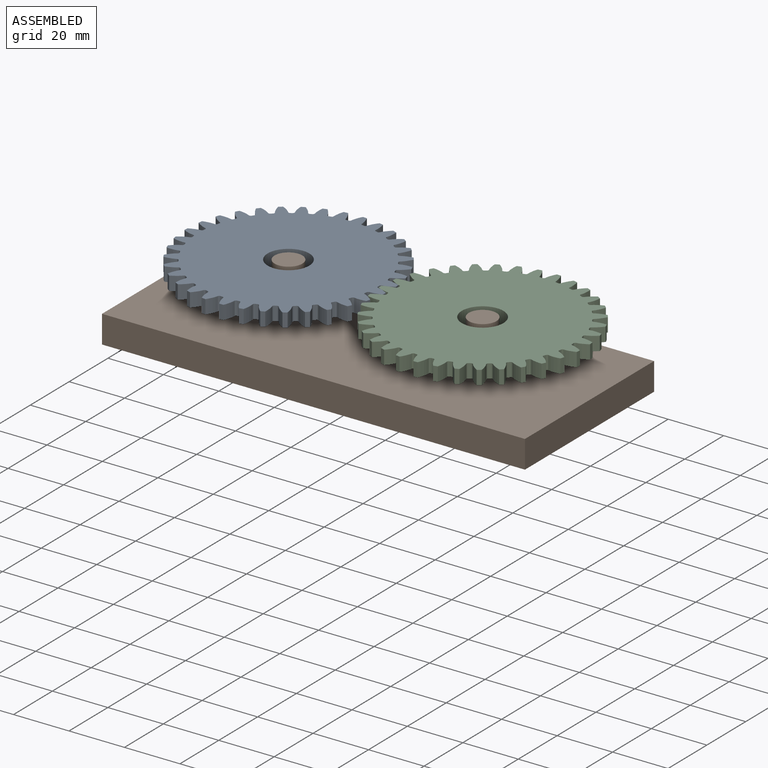
[diagram: assembled view]
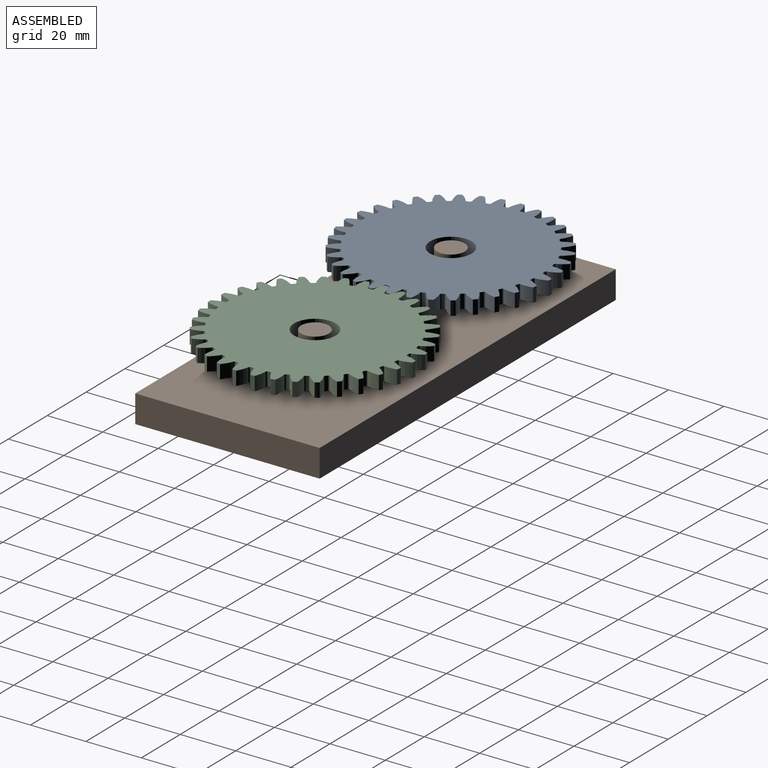
[diagram: assembled view, second angle]
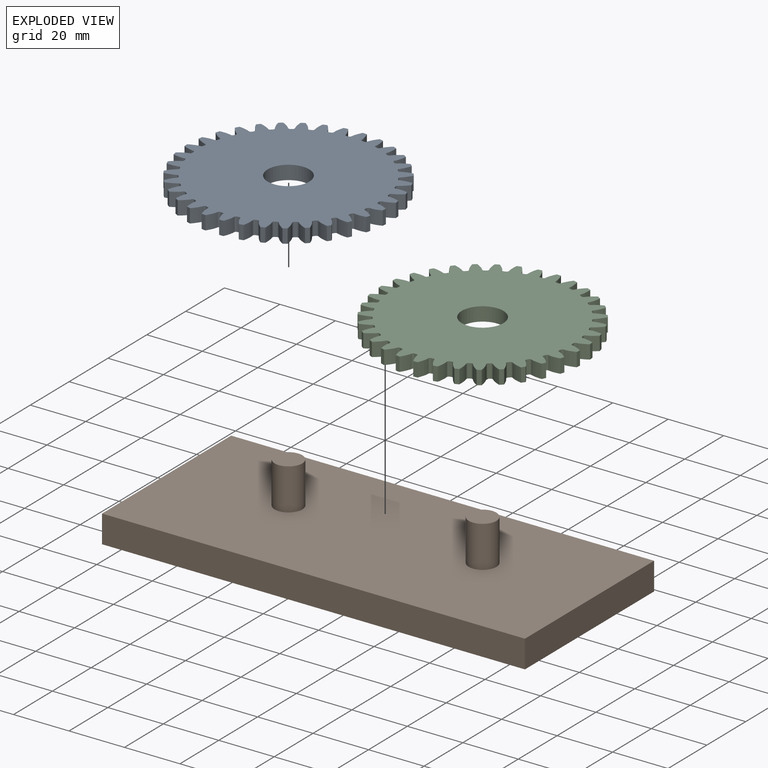
[diagram: exploded view]
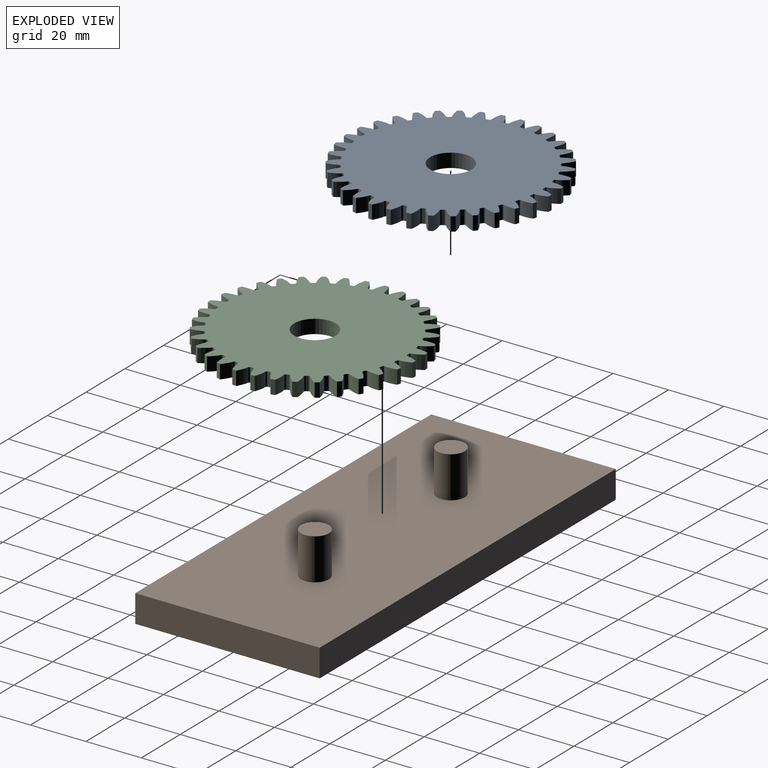
[diagram: exploded view, second angle]
ASSEMBLY  parts=3 mates=2
PART A: 213 faces, bbox 73.9x5x74 mm
  f0: extruded ~5x3.86mm, area 20.9mm2, adj f140,f141,f142,f143
  f1: cylinder r=32.5mm len=5mm, axis (0,1,0), area 3.5mm2, adj f141,f142,f143,f144
  f2: extruded ~5x3.86mm, area 20.9mm2, adj f3,f141,f142,f144
  f3: cylinder r=37mm len=5mm, axis (0,1,0), area 7.5mm2, adj f2,f4,f141,f142
  f4: extruded ~5x4.07mm, area 20.9mm2, adj f3,f141,f142,f145
  f5: cylinder r=32.5mm len=5mm, axis (0,1,0), area 3.5mm2, adj f141,f142,f145,f146
  f6: extruded ~5x3.51mm, area 20.9mm2, adj f7,f141,f142,f146
  f7: cylinder r=37mm len=5mm, axis (0,1,0), area 7.5mm2, adj f6,f8,f141,f142
  f8: extruded ~5x4.16mm, area 20.9mm2, adj f7,f141,f142,f147
  f9: cylinder r=32.5mm len=5mm, axis (0,1,0), area 3.5mm2, adj f141,f142,f147,f148
  f10: extruded ~5x3.06mm, area 20.9mm2, adj f11,f141,f142,f148
  f11: cylinder r=37mm len=5mm, axis (0,1,0), area 7.5mm2, adj f10,f12,f141,f142
  f12: extruded ~5x4.11mm, area 20.9mm2, adj f11,f141,f142,f149
  f13: cylinder r=32.5mm len=5mm, axis (0,1,0), area 3.5mm2, adj f141,f142,f149,f150
  f14: extruded ~5x3.32mm, area 20.9mm2, adj f15,f141,f142,f150
  f15: cylinder r=37mm len=5mm, axis (0,1,0), area 7.5mm2, adj f14,f16,f141,f142
  f16: extruded ~5x3.93mm, area 20.9mm2, adj f15,f141,f142,f151
  f17: cylinder r=32.5mm len=5mm, axis (0,1,0), area 3.5mm2, adj f141,f142,f151,f152
  f18: extruded ~5x3.72mm, area 20.9mm2, adj f19,f141,f142,f152
  f19: cylinder r=37mm len=5mm, axis (0,1,0), area 7.5mm2, adj f18,f20,f141,f142
  f20: extruded ~5x3.63mm, area 20.9mm2, adj f19,f141,f142,f153
  f21: cylinder r=32.5mm len=5mm, axis (0,1,0), area 3.5mm2, adj f141,f142,f153,f154
  f22: extruded ~5x3.99mm, area 20.9mm2, adj f23,f141,f142,f154
  f23: cylinder r=37mm len=5mm, axis (0,1,0), area 7.5mm2, adj f22,f24,f141,f142
  f24: extruded ~5x3.21mm, area 20.9mm2, adj f23,f141,f142,f155
  f25: cylinder r=32.5mm len=5mm, axis (0,1,0), area 3.5mm2, adj f141,f142,f155,f156
  f26: extruded ~5x4.14mm, area 20.9mm2, adj f27,f141,f142,f156
  f27: cylinder r=37mm len=5mm, axis (0,1,0), area 7.5mm2, adj f26,f28,f141,f142
  f28: extruded ~5x3.18mm, area 20.9mm2, adj f27,f141,f142,f157
  f29: cylinder r=32.5mm len=5mm, axis (0,1,0), area 3.5mm2, adj f141,f142,f157,f158
  f30: extruded ~5x4.15mm, area 20.9mm2, adj f31,f141,f142,f158
  f31: cylinder r=37mm len=5mm, axis (0,1,0), area 7.5mm2, adj f30,f32,f141,f142
  f32: extruded ~5x3.61mm, area 20.9mm2, adj f31,f141,f142,f159
  f33: cylinder r=32.5mm len=5mm, axis (0,1,0), area 3.5mm2, adj f141,f142,f159,f160
  f34: extruded ~5x4.03mm, area 20.9mm2, adj f35,f141,f142,f160
  f35: cylinder r=37mm len=5mm, axis (0,1,0), area 7.5mm2, adj f34,f36,f141,f142
  f36: extruded ~5x3.92mm, area 20.9mm2, adj f35,f141,f142,f161
  f37: cylinder r=32.5mm len=5mm, axis (0,1,0), area 3.5mm2, adj f141,f142,f161,f162
  f38: extruded ~5x3.78mm, area 20.9mm2, adj f39,f141,f142,f162
  f39: cylinder r=37mm len=5mm, axis (0,1,0), area 7.5mm2, adj f38,f40,f141,f142
  f40: extruded ~5x4.11mm, area 20.9mm2, adj f39,f141,f142,f163
  f41: cylinder r=32.5mm len=5mm, axis (0,1,0), area 3.5mm2, adj f141,f142,f163,f164
  f42: extruded ~5x3.41mm, area 20.9mm2, adj f43,f141,f142,f164
  f43: cylinder r=37mm len=5mm, axis (0,1,0), area 7.5mm2, adj f42,f44,f141,f142
  f44: extruded ~5x4.16mm, area 20.9mm2, adj f43,f141,f142,f165
  f45: cylinder r=32.5mm len=5mm, axis (0,1,0), area 3.5mm2, adj f141,f142,f165,f166
  f46: extruded ~5x2.96mm, area 20.9mm2, adj f47,f141,f142,f166
  f47: cylinder r=37mm len=5mm, axis (0,1,0), area 7.5mm2, adj f46,f48,f141,f142
  f48: extruded ~5x4.08mm, area 20.9mm2, adj f47,f141,f142,f167
  f49: cylinder r=32.5mm len=5mm, axis (0,1,0), area 3.5mm2, adj f141,f142,f167,f168
  f50: extruded ~5x3.43mm, area 20.9mm2, adj f51,f141,f142,f168
  f51: cylinder r=37mm len=5mm, axis (0,1,0), area 7.5mm2, adj f50,f52,f141,f142
  f52: extruded ~5x3.87mm, area 20.9mm2, adj f51,f141,f142,f169
  f53: cylinder r=32.5mm len=5mm, axis (0,1,0), area 3.5mm2, adj f141,f142,f169,f170
  f54: extruded ~5x3.8mm, area 20.9mm2, adj f55,f141,f142,f170
  f55: cylinder r=37mm len=5mm, axis (0,1,0), area 7.5mm2, adj f54,f56,f141,f142
  f56: extruded ~5x3.53mm, area 20.9mm2, adj f55,f141,f142,f171
  f57: cylinder r=32.5mm len=5mm, axis (0,1,0), area 3.5mm2, adj f141,f142,f171,f172
  f58: extruded ~5x4.04mm, area 20.9mm2, adj f59,f141,f142,f172
  f59: cylinder r=37mm len=5mm, axis (0,1,0), area 7.5mm2, adj f58,f60,f141,f142
  f60: extruded ~5x3.08mm, area 20.9mm2, adj f59,f141,f142,f173
  f61: cylinder r=32.5mm len=5mm, axis (0,1,0), area 3.5mm2, adj f141,f142,f173,f174
  f62: extruded ~5x4.15mm, area 20.9mm2, adj f63,f141,f142,f174
  f63: cylinder r=37mm len=5mm, axis (0,1,0), area 7.5mm2, adj f62,f64,f141,f142
  f64: extruded ~5x3.3mm, area 20.9mm2, adj f63,f141,f142,f175
  f65: cylinder r=32.5mm len=5mm, axis (0,1,0), area 3.5mm2, adj f141,f142,f175,f176
  f66: extruded ~5x4.13mm, area 20.9mm2, adj f67,f141,f142,f176
  f67: cylinder r=37mm len=5mm, axis (0,1,0), area 7.5mm2, adj f66,f68,f141,f142
  f68: extruded ~5x3.7mm, area 20.9mm2, adj f67,f141,f142,f177
  f69: cylinder r=32.5mm len=5mm, axis (0,1,0), area 3.5mm2, adj f141,f142,f177,f178
  f70: extruded ~5x3.98mm, area 20.9mm2, adj f71,f141,f142,f178
  f71: cylinder r=37mm len=5mm, axis (0,1,0), area 7.5mm2, adj f70,f72,f141,f142
  f72: extruded ~5x3.98mm, area 20.9mm2, adj f71,f141,f142,f179
  f73: cylinder r=32.5mm len=5mm, axis (0,1,0), area 3.5mm2, adj f141,f142,f179,f180
  f74: extruded ~5x3.7mm, area 20.9mm2, adj f75,f141,f142,f180
  f75: cylinder r=37mm len=5mm, axis (0,1,0), area 7.5mm2, adj f74,f76,f141,f142
  f76: extruded ~5x4.13mm, area 20.9mm2, adj f75,f141,f142,f181
  f77: cylinder r=32.5mm len=5mm, axis (0,1,0), area 3.5mm2, adj f141,f142,f181,f182
  f78: extruded ~5x3.3mm, area 20.9mm2, adj f79,f141,f142,f182
  f79: cylinder r=37mm len=5mm, axis (0,1,0), area 7.5mm2, adj f78,f80,f141,f142
  f80: extruded ~5x4.15mm, area 20.9mm2, adj f79,f141,f142,f183
  f81: cylinder r=32.5mm len=5mm, axis (0,1,0), area 3.5mm2, adj f141,f142,f183,f184
  f82: extruded ~5x3.08mm, area 20.9mm2, adj f83,f141,f142,f184
  f83: cylinder r=37mm len=5mm, axis (0,1,0), area 7.5mm2, adj f82,f84,f141,f142
  f84: extruded ~5x4.04mm, area 20.9mm2, adj f83,f141,f142,f185
  f85: cylinder r=32.5mm len=5mm, axis (0,1,0), area 3.5mm2, adj f141,f142,f185,f186
  f86: extruded ~5x3.53mm, area 20.9mm2, adj f87,f141,f142,f186
  f87: cylinder r=37mm len=5mm, axis (0,1,0), area 7.5mm2, adj f86,f88,f141,f142
  f88: extruded ~5x3.8mm, area 20.9mm2, adj f87,f141,f142,f187
  f89: cylinder r=32.5mm len=5mm, axis (0,1,0), area 3.5mm2, adj f141,f142,f187,f188
  f90: extruded ~5x3.87mm, area 20.9mm2, adj f91,f141,f142,f188
  f91: cylinder r=37mm len=5mm, axis (0,1,0), area 7.5mm2, adj f90,f92,f141,f142
  f92: extruded ~5x3.43mm, area 20.9mm2, adj f91,f141,f142,f189
  f93: cylinder r=32.5mm len=5mm, axis (0,1,0), area 3.5mm2, adj f141,f142,f189,f190
  f94: extruded ~5x4.08mm, area 20.9mm2, adj f95,f141,f142,f190
  f95: cylinder r=37mm len=5mm, axis (0,1,0), area 7.5mm2, adj f94,f96,f141,f142
  f96: extruded ~5x2.96mm, area 20.9mm2, adj f95,f141,f142,f191
  f97: cylinder r=32.5mm len=5mm, axis (0,1,0), area 3.5mm2, adj f141,f142,f191,f192
  f98: extruded ~5x4.16mm, area 20.9mm2, adj f99,f141,f142,f192
  f99: cylinder r=37mm len=5mm, axis (0,1,0), area 7.5mm2, adj f98,f100,f141,f142
  f100: extruded ~5x3.41mm, area 20.9mm2, adj f99,f141,f142,f193
  f101: cylinder r=32.5mm len=5mm, axis (0,1,0), area 3.5mm2, adj f141,f142,f193,f194
  f102: extruded ~5x4.11mm, area 20.9mm2, adj f103,f141,f142,f194
  f103: cylinder r=37mm len=5mm, axis (0,1,0), area 7.5mm2, adj f102,f104,f141,f142
  f104: extruded ~5x3.78mm, area 20.9mm2, adj f103,f141,f142,f195
  f105: cylinder r=32.5mm len=5mm, axis (0,1,0), area 3.5mm2, adj f141,f142,f195,f196
  f106: extruded ~5x3.92mm, area 20.9mm2, adj f107,f141,f142,f196
  f107: cylinder r=37mm len=5mm, axis (0,1,0), area 7.5mm2, adj f106,f108,f141,f142
  f108: extruded ~5x4.03mm, area 20.9mm2, adj f107,f141,f142,f197
  f109: cylinder r=32.5mm len=5mm, axis (0,1,0), area 3.5mm2, adj f141,f142,f197,f198
  f110: extruded ~5x3.61mm, area 20.9mm2, adj f111,f141,f142,f198
  f111: cylinder r=37mm len=5mm, axis (0,1,0), area 7.5mm2, adj f110,f112,f141,f142
  f112: extruded ~5x4.15mm, area 20.9mm2, adj f111,f141,f142,f199
  f113: cylinder r=32.5mm len=5mm, axis (0,1,0), area 3.5mm2, adj f141,f142,f199,f200
  f114: extruded ~5x3.18mm, area 20.9mm2, adj f115,f141,f142,f200
  f115: cylinder r=37mm len=5mm, axis (0,1,0), area 7.5mm2, adj f114,f116,f141,f142
  f116: extruded ~5x4.14mm, area 20.9mm2, adj f115,f141,f142,f201
  f117: cylinder r=32.5mm len=5mm, axis (0,1,0), area 3.5mm2, adj f141,f142,f201,f202
  f118: extruded ~5x3.21mm, area 20.9mm2, adj f119,f141,f142,f202
  f119: cylinder r=37mm len=5mm, axis (0,1,0), area 7.5mm2, adj f118,f120,f141,f142
  f120: extruded ~5x3.99mm, area 20.9mm2, adj f119,f141,f142,f203
  f121: cylinder r=32.5mm len=5mm, axis (0,1,0), area 3.5mm2, adj f141,f142,f203,f204
  f122: extruded ~5x3.63mm, area 20.9mm2, adj f123,f141,f142,f204
  f123: cylinder r=37mm len=5mm, axis (0,1,0), area 7.5mm2, adj f122,f124,f141,f142
  f124: extruded ~5x3.72mm, area 20.9mm2, adj f123,f141,f142,f205
  f125: cylinder r=32.5mm len=5mm, axis (0,1,0), area 3.5mm2, adj f141,f142,f205,f206
  f126: extruded ~5x3.93mm, area 20.9mm2, adj f127,f141,f142,f206
  f127: cylinder r=37mm len=5mm, axis (0,1,0), area 7.5mm2, adj f126,f128,f141,f142
  f128: extruded ~5x3.32mm, area 20.9mm2, adj f127,f141,f142,f207
  f129: cylinder r=32.5mm len=5mm, axis (0,1,0), area 3.5mm2, adj f141,f142,f207,f208
  f130: extruded ~5x4.11mm, area 20.9mm2, adj f131,f141,f142,f208
  f131: cylinder r=37mm len=5mm, axis (0,1,0), area 7.5mm2, adj f130,f132,f141,f142
  f132: extruded ~5x3.06mm, area 20.9mm2, adj f131,f141,f142,f209
  f133: cylinder r=32.5mm len=5mm, axis (0,1,0), area 3.5mm2, adj f141,f142,f209,f210
  f134: extruded ~5x4.16mm, area 20.9mm2, adj f135,f141,f142,f210
  f135: cylinder r=37mm len=5mm, axis (0,1,0), area 7.5mm2, adj f134,f136,f141,f142
  f136: extruded ~5x3.51mm, area 20.9mm2, adj f135,f141,f142,f211
  f137: cylinder r=32.5mm len=5mm, axis (0,1,0), area 3.5mm2, adj f141,f142,f211,f212
  f138: extruded ~5x4.07mm, area 20.9mm2, adj f140,f141,f142,f212
  f139: cylinder r=7.5mm len=15mm, axis (0,1,0), area 235.6mm2, adj f141,f142
  f140: cylinder r=37mm len=5mm, axis (0,1,0), area 7.5mm2, adj f0,f138,f141,f142
  f141: plane 73.98x73.91mm, normal (0,-1,0), area 3636.3mm2, adj f0,f1,f2,f3,f4,f5,f6,f7
  f142: plane 73.98x73.91mm, normal (0,1,0), area 3636.3mm2, adj f0,f1,f2,f3,f4,f5,f6,f7
  f143: cylinder r=0.65mm len=5mm, axis (0,1,0), area 4.7mm2, adj f0,f1,f141,f142
  f144: cylinder r=0.65mm len=5mm, axis (0,1,0), area 4.7mm2, adj f1,f2,f141,f142
  f145: cylinder r=0.65mm len=5mm, axis (0,1,0), area 4.7mm2, adj f4,f5,f141,f142
  f146: cylinder r=0.65mm len=5mm, axis (0,1,0), area 4.7mm2, adj f5,f6,f141,f142
  f147: cylinder r=0.65mm len=5mm, axis (0,1,0), area 4.7mm2, adj f8,f9,f141,f142
  f148: cylinder r=0.65mm len=5mm, axis (0,1,0), area 4.7mm2, adj f9,f10,f141,f142
  f149: cylinder r=0.65mm len=5mm, axis (0,1,0), area 4.7mm2, adj f12,f13,f141,f142
  f150: cylinder r=0.65mm len=5mm, axis (0,1,0), area 4.7mm2, adj f13,f14,f141,f142
  f151: cylinder r=0.65mm len=5mm, axis (0,1,0), area 4.7mm2, adj f16,f17,f141,f142
  f152: cylinder r=0.65mm len=5mm, axis (0,1,0), area 4.7mm2, adj f17,f18,f141,f142
  f153: cylinder r=0.65mm len=5mm, axis (0,1,0), area 4.7mm2, adj f20,f21,f141,f142
  f154: cylinder r=0.65mm len=5mm, axis (0,1,0), area 4.7mm2, adj f21,f22,f141,f142
  f155: cylinder r=0.65mm len=5mm, axis (0,1,0), area 4.7mm2, adj f24,f25,f141,f142
  f156: cylinder r=0.65mm len=5mm, axis (0,1,0), area 4.7mm2, adj f25,f26,f141,f142
  f157: cylinder r=0.65mm len=5mm, axis (0,1,0), area 4.7mm2, adj f28,f29,f141,f142
  f158: cylinder r=0.65mm len=5mm, axis (0,1,0), area 4.7mm2, adj f29,f30,f141,f142
  f159: cylinder r=0.65mm len=5mm, axis (0,1,0), area 4.7mm2, adj f32,f33,f141,f142
  f160: cylinder r=0.65mm len=5mm, axis (0,1,0), area 4.7mm2, adj f33,f34,f141,f142
  f161: cylinder r=0.65mm len=5mm, axis (0,1,0), area 4.7mm2, adj f36,f37,f141,f142
  f162: cylinder r=0.65mm len=5mm, axis (0,1,0), area 4.7mm2, adj f37,f38,f141,f142
  f163: cylinder r=0.65mm len=5mm, axis (0,1,0), area 4.7mm2, adj f40,f41,f141,f142
  f164: cylinder r=0.65mm len=5mm, axis (0,1,0), area 4.7mm2, adj f41,f42,f141,f142
  f165: cylinder r=0.65mm len=5mm, axis (0,1,0), area 4.7mm2, adj f44,f45,f141,f142
  f166: cylinder r=0.65mm len=5mm, axis (0,1,0), area 4.7mm2, adj f45,f46,f141,f142
  f167: cylinder r=0.65mm len=5mm, axis (0,1,0), area 4.7mm2, adj f48,f49,f141,f142
  f168: cylinder r=0.65mm len=5mm, axis (0,1,0), area 4.7mm2, adj f49,f50,f141,f142
  f169: cylinder r=0.65mm len=5mm, axis (0,1,0), area 4.7mm2, adj f52,f53,f141,f142
  f170: cylinder r=0.65mm len=5mm, axis (0,1,0), area 4.7mm2, adj f53,f54,f141,f142
  f171: cylinder r=0.65mm len=5mm, axis (0,1,0), area 4.7mm2, adj f56,f57,f141,f142
  f172: cylinder r=0.65mm len=5mm, axis (0,1,0), area 4.7mm2, adj f57,f58,f141,f142
  f173: cylinder r=0.65mm len=5mm, axis (0,1,0), area 4.7mm2, adj f60,f61,f141,f142
  f174: cylinder r=0.65mm len=5mm, axis (0,1,0), area 4.7mm2, adj f61,f62,f141,f142
  f175: cylinder r=0.65mm len=5mm, axis (0,1,0), area 4.7mm2, adj f64,f65,f141,f142
  f176: cylinder r=0.65mm len=5mm, axis (0,1,0), area 4.7mm2, adj f65,f66,f141,f142
  f177: cylinder r=0.65mm len=5mm, axis (0,1,0), area 4.7mm2, adj f68,f69,f141,f142
  f178: cylinder r=0.65mm len=5mm, axis (0,1,0), area 4.7mm2, adj f69,f70,f141,f142
  f179: cylinder r=0.65mm len=5mm, axis (0,1,0), area 4.7mm2, adj f72,f73,f141,f142
  f180: cylinder r=0.65mm len=5mm, axis (0,1,0), area 4.7mm2, adj f73,f74,f141,f142
  f181: cylinder r=0.65mm len=5mm, axis (0,1,0), area 4.7mm2, adj f76,f77,f141,f142
  f182: cylinder r=0.65mm len=5mm, axis (0,1,0), area 4.7mm2, adj f77,f78,f141,f142
  f183: cylinder r=0.65mm len=5mm, axis (0,1,0), area 4.7mm2, adj f80,f81,f141,f142
  f184: cylinder r=0.65mm len=5mm, axis (0,1,0), area 4.7mm2, adj f81,f82,f141,f142
  f185: cylinder r=0.65mm len=5mm, axis (0,1,0), area 4.7mm2, adj f84,f85,f141,f142
  f186: cylinder r=0.65mm len=5mm, axis (0,1,0), area 4.7mm2, adj f85,f86,f141,f142
  f187: cylinder r=0.65mm len=5mm, axis (0,1,0), area 4.7mm2, adj f88,f89,f141,f142
  f188: cylinder r=0.65mm len=5mm, axis (0,1,0), area 4.7mm2, adj f89,f90,f141,f142
  f189: cylinder r=0.65mm len=5mm, axis (0,1,0), area 4.7mm2, adj f92,f93,f141,f142
  f190: cylinder r=0.65mm len=5mm, axis (0,1,0), area 4.7mm2, adj f93,f94,f141,f142
  f191: cylinder r=0.65mm len=5mm, axis (0,1,0), area 4.7mm2, adj f96,f97,f141,f142
  f192: cylinder r=0.65mm len=5mm, axis (0,1,0), area 4.7mm2, adj f97,f98,f141,f142
  f193: cylinder r=0.65mm len=5mm, axis (0,1,0), area 4.7mm2, adj f100,f101,f141,f142
  f194: cylinder r=0.65mm len=5mm, axis (0,1,0), area 4.7mm2, adj f101,f102,f141,f142
  f195: cylinder r=0.65mm len=5mm, axis (0,1,0), area 4.7mm2, adj f104,f105,f141,f142
  f196: cylinder r=0.65mm len=5mm, axis (0,1,0), area 4.7mm2, adj f105,f106,f141,f142
  f197: cylinder r=0.65mm len=5mm, axis (0,1,0), area 4.7mm2, adj f108,f109,f141,f142
  f198: cylinder r=0.65mm len=5mm, axis (0,1,0), area 4.7mm2, adj f109,f110,f141,f142
  f199: cylinder r=0.65mm len=5mm, axis (0,1,0), area 4.7mm2, adj f112,f113,f141,f142
  f200: cylinder r=0.65mm len=5mm, axis (0,1,0), area 4.7mm2, adj f113,f114,f141,f142
  f201: cylinder r=0.65mm len=5mm, axis (0,1,0), area 4.7mm2, adj f116,f117,f141,f142
  f202: cylinder r=0.65mm len=5mm, axis (0,1,0), area 4.7mm2, adj f117,f118,f141,f142
  f203: cylinder r=0.65mm len=5mm, axis (0,1,0), area 4.7mm2, adj f120,f121,f141,f142
  f204: cylinder r=0.65mm len=5mm, axis (0,1,0), area 4.7mm2, adj f121,f122,f141,f142
  f205: cylinder r=0.65mm len=5mm, axis (0,1,0), area 4.7mm2, adj f124,f125,f141,f142
  f206: cylinder r=0.65mm len=5mm, axis (0,1,0), area 4.7mm2, adj f125,f126,f141,f142
  f207: cylinder r=0.65mm len=5mm, axis (0,1,0), area 4.7mm2, adj f128,f129,f141,f142
  f208: cylinder r=0.65mm len=5mm, axis (0,1,0), area 4.7mm2, adj f129,f130,f141,f142
  f209: cylinder r=0.65mm len=5mm, axis (0,1,0), area 4.7mm2, adj f132,f133,f141,f142
  f210: cylinder r=0.65mm len=5mm, axis (0,1,0), area 4.7mm2, adj f133,f134,f141,f142
  f211: cylinder r=0.65mm len=5mm, axis (0,1,0), area 4.7mm2, adj f136,f137,f141,f142
  f212: cylinder r=0.65mm len=5mm, axis (0,1,0), area 4.7mm2, adj f137,f138,f141,f142
PART B: 10 faces, bbox 152.5x66.5x25 mm
  f0: plane 66.51x10mm, normal (-1,0,0), area 665.1mm2, adj f1,f3,f4,f5
  f1: plane 152.51x10mm, normal (0,-1,0), area 1525.1mm2, adj f0,f2,f4,f5
  f2: plane 66.51x10mm, normal (1,0,0), area 665.1mm2, adj f1,f3,f4,f5
  f3: plane 152.51x10mm, normal (0,1,0), area 1525.1mm2, adj f0,f2,f4,f5
  f4: plane 152.51x66.51mm, normal (0,0,1), area 9986.5mm2, adj f0,f1,f2,f3,f6,f8
  f5: plane 152.51x66.51mm, normal (0,0,-1), area 10143.6mm2, adj f0,f1,f2,f3
  f6: cylinder r=5mm len=15mm, axis (0,0,-1), area 471.2mm2, adj f4,f7
  f7: plane 10x10mm, normal (0,0,1), area 78.5mm2, adj f6
  f8: cylinder r=5mm len=15mm, axis (0,0,-1), area 471.2mm2, adj f4,f9
  f9: plane 10x10mm, normal (0,0,1), area 78.5mm2, adj f8
PART C: same geometry as A
PLACE A rot(axis=(1,0,0),90deg) t=(-41.87,4.28,20.76)mm
PLACE B t=(-6.87,4.28,-4.24)mm fixed
PLACE C rot(axis=(1,0,0),90deg) t=(28.13,4.28,20.76)mm
MATE revolute A.f3 <-> B.f6  axis (0,0,1) through (-41.87,4.28,20.76)mm
MATE revolute C.f3 <-> B.f8  axis (0,0,1) through (28.13,4.28,20.76)mm
